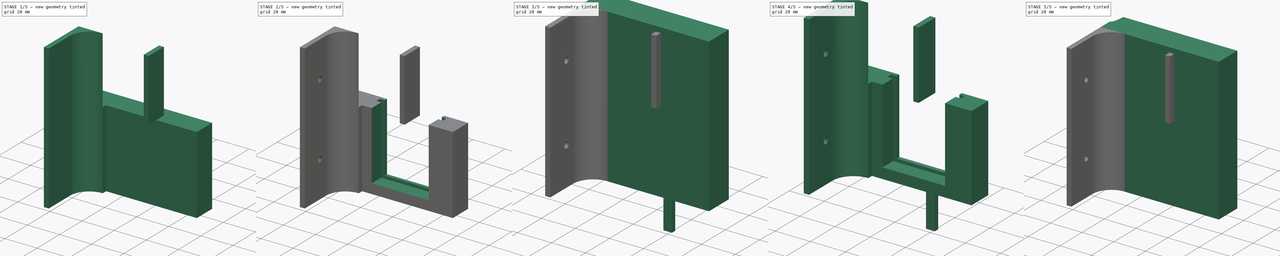
[diagram: build sequence overview — one tinted view per stage of 5, left to right]
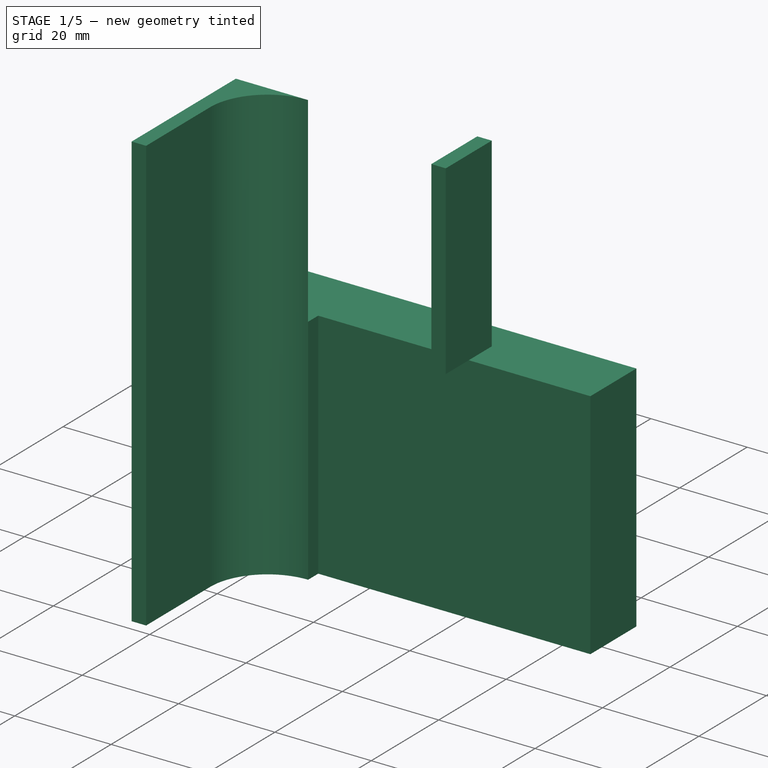
[diagram: stage 1 of 5 — iso view after this stage's code; geometry added in this stage tinted green]
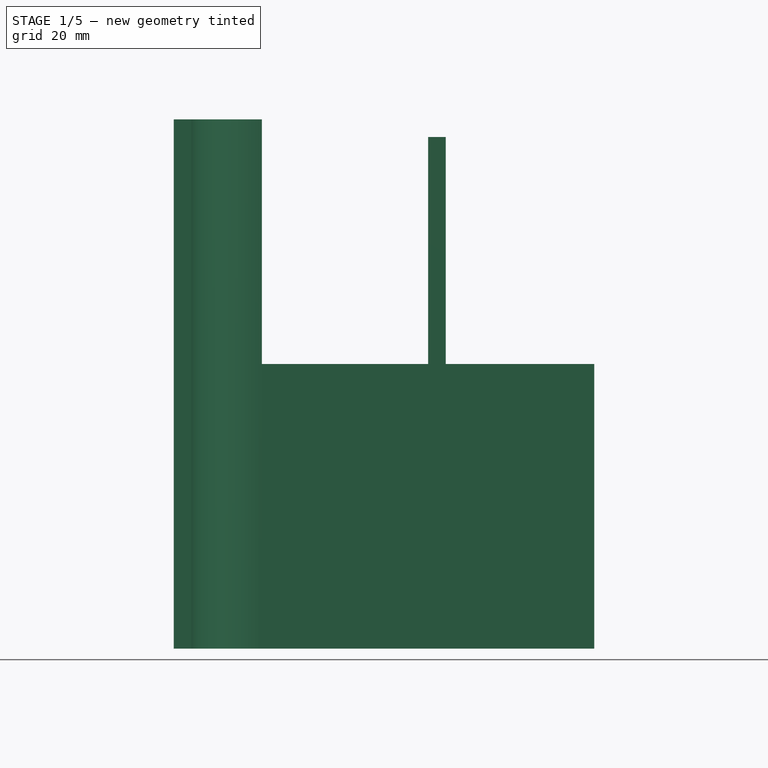
[diagram: stage 1 of 5 — front view after this stage's code; geometry added in this stage tinted green]
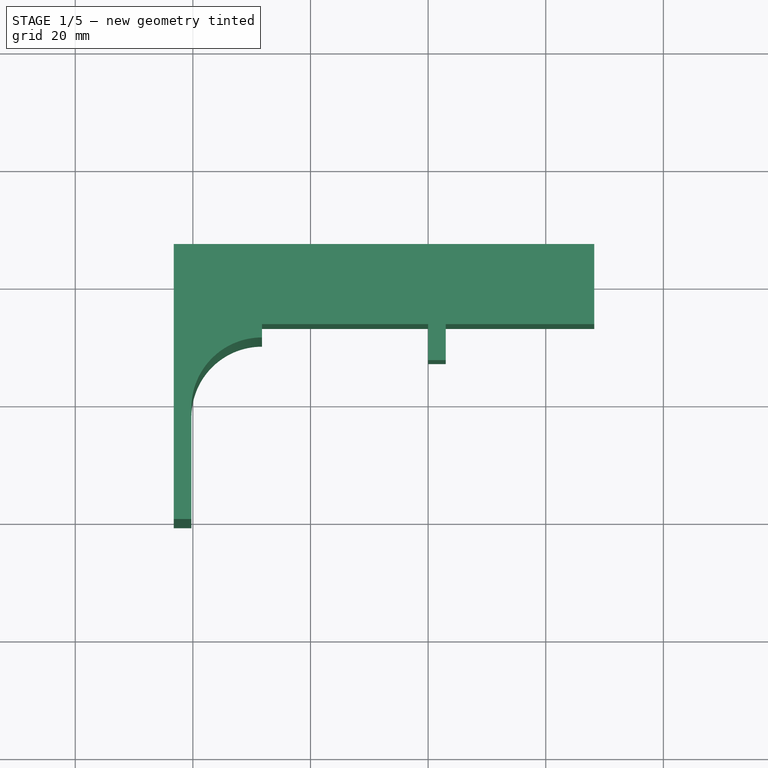
[diagram: stage 1 of 5 — top view after this stage's code; geometry added in this stage tinted green]
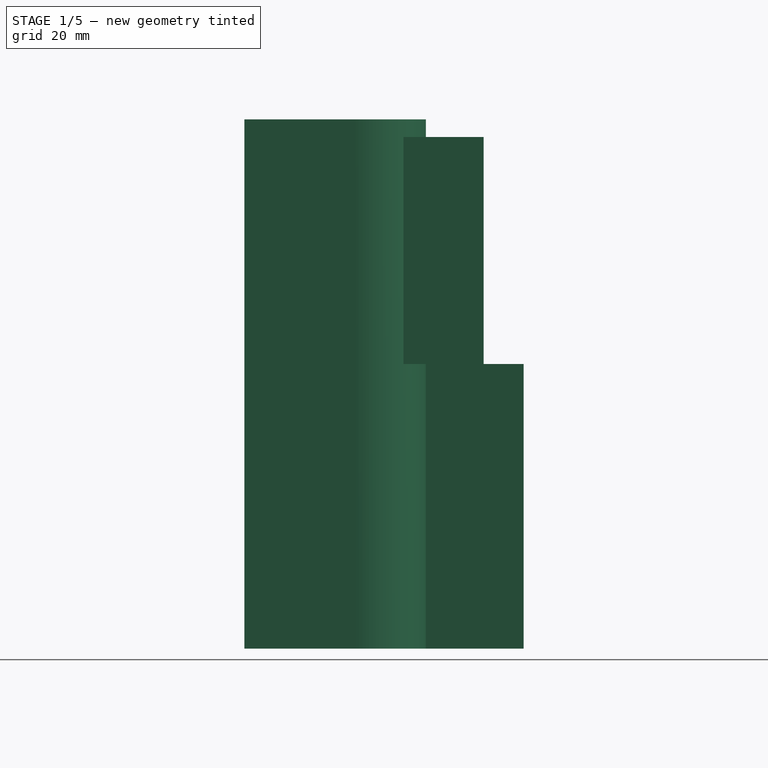
[diagram: stage 1 of 5 — right view after this stage's code; geometry added in this stage tinted green]
FCSTD DOCUMENT  (FreeCAD 0.19R24366 (Git))
Label: rfid_mk2
License: All rights reserved
LicenseURL: http://en.wikipedia.org/wiki/All_rights_reserved
objects: Sketcher::SketchObject×12, PartDesign::Pad×7, PartDesign::Body×7, App::Link×7, PartDesign::Pocket×5, Part::Cut×5, Spreadsheet::Sheet×3, PartDesign::Boolean×1, PartDesign::Thickness×1, Part::MultiFuse×1
note: 52 computed .brp shape members not serialized (recipe doc carries the construction recipe); baked Part::Feature solids carry a one-line shape summary decoded from their .brp

FEATURE [Sketcher::SketchObject] Sketch  label="Holder Sketch"
  FullyConstrained = false
  MapMode = 5
  Support = -> [XY_Plane]
  expr: Constraints[8] = <<Holder Data>>.width
  expr: Constraints[9] = <<Holder Data>>.thick
  sketch-geometry (4):
    g0: LineSegment StartX=-28.25 StartY=6.81 StartZ=0 EndX=28.25 EndY=6.81 EndZ=0
    g1: LineSegment StartX=28.25 StartY=6.81 StartZ=0 EndX=28.25 EndY=-6.81 EndZ=0
    g2: LineSegment StartX=28.25 StartY=-6.81 StartZ=0 EndX=-28.25 EndY=-6.81 EndZ=0
    g3: LineSegment StartX=-28.25 StartY=-6.81 StartZ=0 EndX=-28.25 EndY=6.81 EndZ=0
  constraints (10):
    c: Coincident(g0,g1)
    c: Coincident(g1,g2)
    c: Coincident(g2,g3)
    c: Coincident(g3,g0)
    c: Horizontal(g2)
    c: Vertical(g3)
    c: Symmetric(g0,g0,g-2)
    c: Symmetric(g1,g0,g-1)
    c: DistanceX(g0,g0) = 56.5
    c: DistanceY(g1,g0) = 13.62
FEATURE [PartDesign::Pad] Pad  label="Holder Pad"
  AllowMultiFace = false
  Direction = (1,1,1)
  Length = 48.4
  Length2 = 100
  Profile = -> Sketch
  Type = 0
  expr: Length = <<Holder Data>>.height
FEATURE [PartDesign::Body] Body  label="Holder"
  Group = -> [Sketch,Pad,Sketch001,Pocket,Sketch002,Pocket001]
  Origin = -> Origin
  Tip = -> Pocket001
FEATURE [Spreadsheet::Sheet] Spreadsheet002  label="Bracket Data"
  cells = A1=width; B1(width)=15; A2=depth; B2(depth)=47.5; A3=rivit; B3(rivit)=3.5
FEATURE [Sketcher::SketchObject] Sketch003  label="Bracket Sketch"
  FullyConstrained = false
  MapMode = 5
  Support = -> [XY_Plane001]
  expr: Constraints[13] = <<Bracket Data>>.depth
  expr: Constraints[14] = <<General Data>>.wall
  expr: Constraints[15] = <<Bracket Data>>.width
  expr: Constraints[16] = <<Holder Data>>.thick + <<General Data>>.wall
  expr: Constraints[18] = <<Holder Data>>.thick / 2
  expr: Constraints[19] = <<Holder Data>>.width / 2
  expr: Constraints[17] = <<Bracket Data>>.width - <<General Data>>.wall - 0.01
  sketch-geometry (7):
    g0: LineSegment StartX=-43.25 StartY=6.81 StartZ=0 EndX=-43.25 EndY=-40.69 EndZ=0
    g1: LineSegment StartX=-43.25 StartY=-40.69 StartZ=0 EndX=-40.25 EndY=-40.69 EndZ=0
    g2: LineSegment StartX=-40.25 StartY=-40.69 StartZ=0 EndX=-40.25 EndY=-21.8 EndZ=0
    g3: LineSegment StartX=-28.26 StartY=-9.81 StartZ=0 EndX=-28.25 EndY=-9.81 EndZ=0
    g4: LineSegment StartX=-28.25 StartY=-9.81 StartZ=0 EndX=-28.25 EndY=6.81 EndZ=0
    g5: LineSegment StartX=-28.25 StartY=6.81 StartZ=0 EndX=-43.25 EndY=6.81 EndZ=0
    g6: ArcOfCircle CenterX=-28.26 CenterY=-21.8 CenterZ=0 NormalX=0 NormalY=0 NormalZ=1 AngleXU=0 Radius=11.99 StartAngle=1.5708 EndAngle=3.14159
  constraints (20):
    c: Vertical(g0)
    c: Coincident(g0,g1)
    c: Coincident(g1,g2)
    c: Vertical(g2)
    c: Horizontal(g3)
    c: Coincident(g3,g4)
    c: Vertical(g4)
    c: Coincident(g4,g5)
    c: Coincident(g5,g0)
    c: Horizontal(g5)
    c: Horizontal(g1)
    c: Tangent(g2,g6) = 1.5708
    c: Tangent(g3,g6) = 1.5708
    c: DistanceY(g0,g0) = 47.5
    c: DistanceX(g1,g1) = 3
    c: DistanceX(g5,g5) = 15
    c: DistanceY(g4,g4) = 16.62
    c: Radius(g6) = 11.99
    c: DistanceY(g-1,g4) = 6.81
    c: DistanceX(g4,g-1) = 28.25
FEATURE [PartDesign::Pad] Pad001  label="Bracket Pad"
  AllowMultiFace = false
  Direction = (1,1,1)
  Length = 90
  Length2 = 100
  Profile = -> Sketch003
  Type = 0
  expr: Length = <<General Data>>.height
FEATURE [Sketcher::SketchObject] Sketch004  label="Bracket Block Cutout Sketch"
  FullyConstrained = false
  MapMode = 5
  Placement = pos=(0,0,90) rot=(0,0,1;0rad)
  Support = -> [Pad001]
  expr: Constraints[8] = <<Holder Data>>.thick + <<General Data>>.wall
  expr: Constraints[9] = <<Bracket Data>>.width
  expr: Constraints[10] = <<Holder Data>>.thick / 2
  expr: Constraints[11] = <<Holder Data>>.width / 2
  sketch-geometry (4):
    g0: LineSegment StartX=-43.25 StartY=6.81 StartZ=0 EndX=-28.25 EndY=6.81 EndZ=0
    g1: LineSegment StartX=-28.25 StartY=6.81 StartZ=0 EndX=-28.25 EndY=-9.81 EndZ=0
    g2: LineSegment StartX=-28.25 StartY=-9.81 StartZ=0 EndX=-43.25 EndY=-9.81 EndZ=0
    g3: LineSegment StartX=-43.25 StartY=-9.81 StartZ=0 EndX=-43.25 EndY=6.81 EndZ=0
  constraints (12):
    c: Coincident(g0,g1)
    c: Coincident(g1,g2)
    c: Coincident(g2,g3)
    c: Coincident(g3,g0)
    c: Horizontal(g0)
    c: Horizontal(g2)
    c: Vertical(g1)
    c: Vertical(g3)
    c: DistanceY(g1,g1) = 16.62
    c: DistanceX(g0,g0) = 15
    c: DistanceY(g-1,g0) = 6.81
    c: DistanceX(g0,g-1) = 28.25
FEATURE [PartDesign::Pocket] Pocket002  label="Bracket Block Cutout"
  AllowMultiFace = false
  BaseFeature = -> Pad001
  Length = 41.6
  Length2 = 100
  Profile = -> Sketch004
  Type = 0
  expr: Length = <<General Data>>.height - <<Holder Data>>.height
FEATURE [Sketcher::SketchObject] Sketch013
  FullyConstrained = false
  MapMode = 5
  Placement = pos=(0,0,0) rot=(0.57735,0.57735,0.57735;2.0944rad)
  Support = -> [YZ_Plane007]
  expr: Constraints[8] = <<Holder Data>>.thick
  expr: Constraints[9] = <<General Data>>.height - <<General Data>>.wall - <<Holder Data>>.height
  expr: Constraints[10] = <<General Data>>.height - <<General Data>>.wall
  expr: Constraints[11] = <<Holder Data>>.thick
  sketch-geometry (4):
    g0: LineSegment StartX=-13.62 StartY=87 StartZ=0 EndX=0 EndY=87 EndZ=0
    g1: LineSegment StartX=0 StartY=87 StartZ=0 EndX=0 EndY=48.4 EndZ=0
    g2: LineSegment StartX=0 StartY=48.4 StartZ=0 EndX=-13.62 EndY=48.4 EndZ=0
    g3: LineSegment StartX=-13.62 StartY=48.4 StartZ=0 EndX=-13.62 EndY=87 EndZ=0
  constraints (12):
    c: Coincident(g0,g1)
    c: Coincident(g1,g2)
    c: Coincident(g2,g3)
    c: Coincident(g3,g0)
    c: Horizontal(g0)
    c: Horizontal(g2)
    c: Vertical(g1)
    c: Vertical(g3)
    c: DistanceX(g0,g0) = 13.62
    c: DistanceY(g1,g1) = 38.6
    c: DistanceY(g-1,g0) = 87
    c: DistanceX(g2,g-1) = 13.62
FEATURE [PartDesign::Pad] Pad008
  AllowMultiFace = false
  Direction = (1,1,1)
  Length = 3
  Length2 = 100
  Placement = pos=(0,0,0) rot=(0.57735,0.57735,0.57735;2.0944rad)
  Profile = -> Sketch013
  Type = 0
  expr: Length = <<General Data>>.wall
FEATURE [PartDesign::Body] Body007  label="Cover Upper Wall"
  Group = -> [Sketch013,Pad008]
  Origin = -> Origin007
  Placement = pos=(20,28.25,0) rot=(0,0,1;0rad)
  Tip = -> Pad008
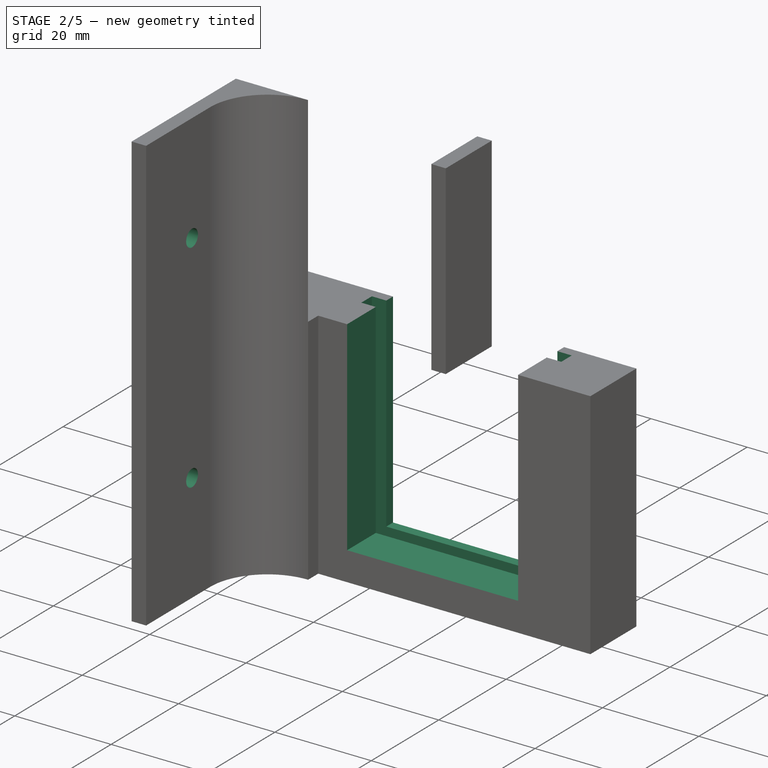
[diagram: stage 2 of 5 — iso view after this stage's code; geometry added in this stage tinted green]
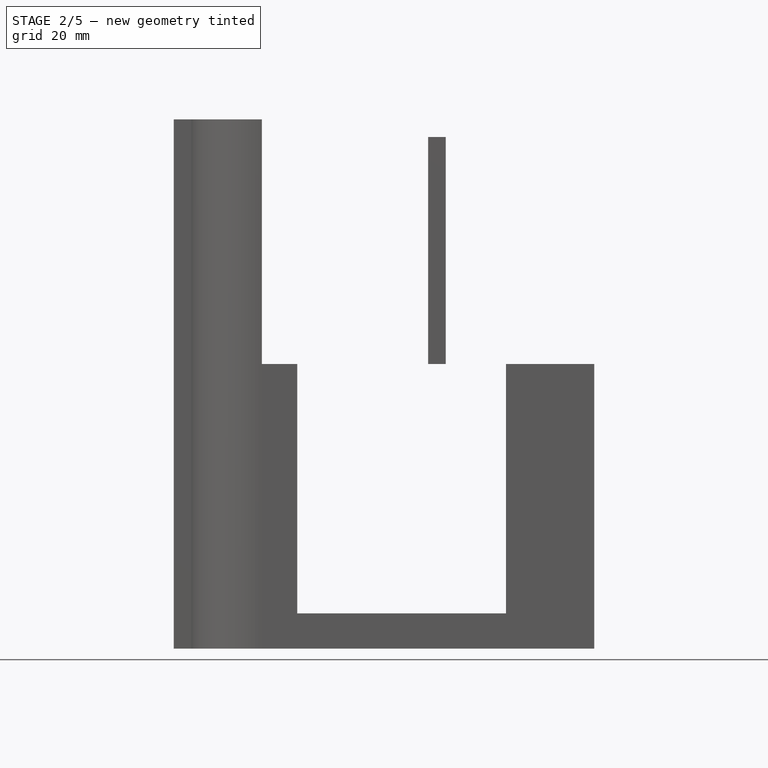
[diagram: stage 2 of 5 — front view after this stage's code; geometry added in this stage tinted green]
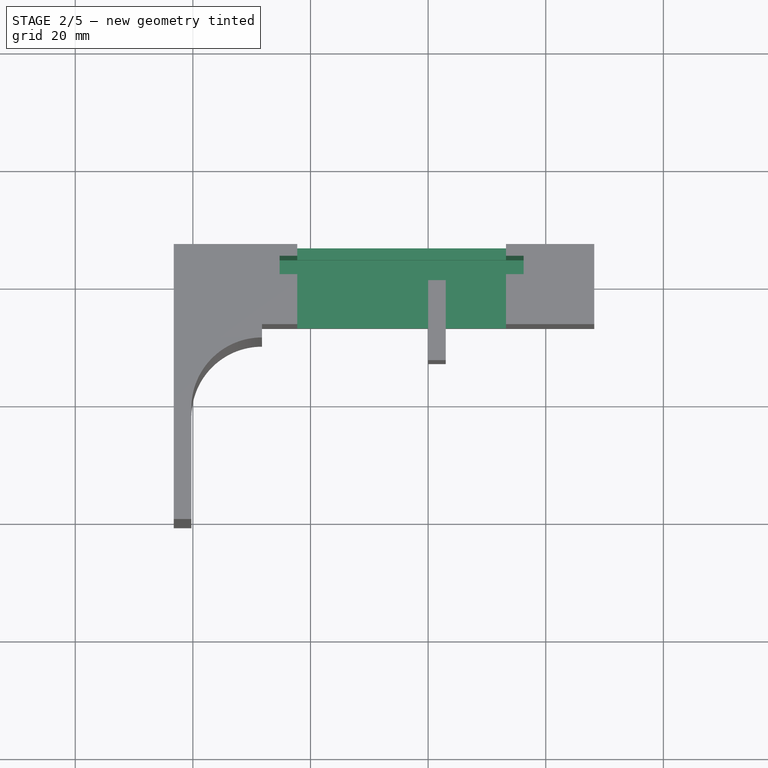
[diagram: stage 2 of 5 — top view after this stage's code; geometry added in this stage tinted green]
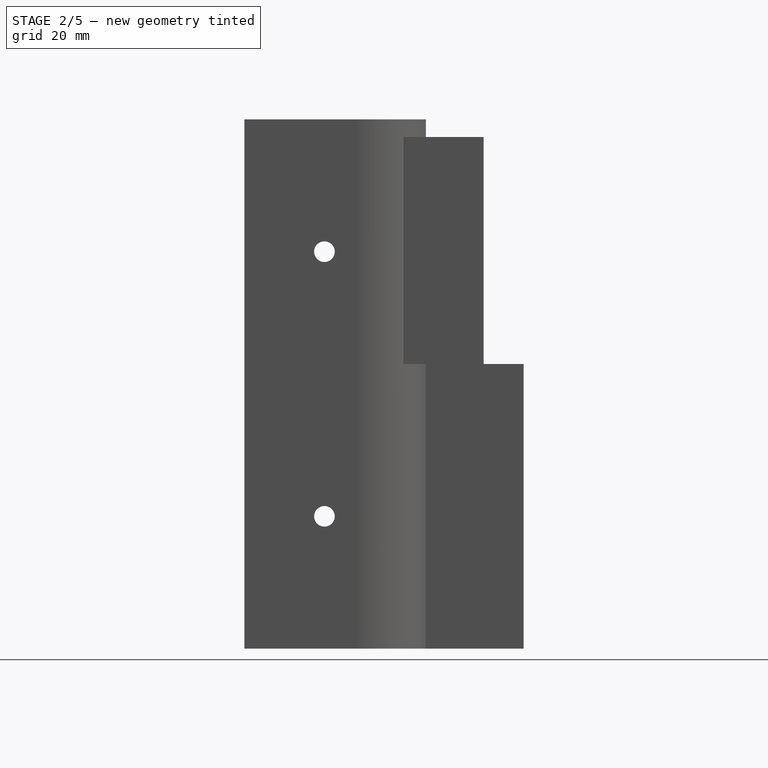
[diagram: stage 2 of 5 — right view after this stage's code; geometry added in this stage tinted green]
FEATURE [Sketcher::SketchObject] Sketch001  label="RFID Slot"
  FullyConstrained = false
  MapMode = 5
  Placement = pos=(0,0,48.4) rot=(0,0,1;0rad)
  Support = -> [Pad]
  expr: Constraints[11] = <<Holder Data>>.thick / 2 - <<Holder Data>>.glass_clearance
  expr: Constraints[2] = <<Holder Data>>.rfid_gap
  expr: Constraints[10] = -<<Holder Data>>.width / 2 + <<General Data>>.wall
  expr: Constraints[1] = <<Holder Data>>.slot
  sketch-geometry (4):
    g0: LineSegment StartX=-25.25 StartY=4.81 StartZ=0 EndX=16.25 EndY=4.81 EndZ=0
    g1: LineSegment StartX=16.25 StartY=4.81 StartZ=0 EndX=16.25 EndY=1.69 EndZ=0
    g2: LineSegment StartX=16.25 StartY=1.69 StartZ=0 EndX=-25.25 EndY=1.69 EndZ=0
    g3: LineSegment StartX=-25.25 StartY=1.69 StartZ=0 EndX=-25.25 EndY=4.81 EndZ=0
  constraints (12):
    c: Vertical(g1)
    c: DistanceY(g1,g1) = 3.12
    c: DistanceX(g0,g0) = 41.5
    c: Coincident(g3,g0)
    c: Coincident(g1,g0)
    c: Coincident(g2,g1)
    c: Horizontal(g0)
    c: Horizontal(g2)
    c: Vertical(g3)
    c: Coincident(g2,g3)
    c: DistanceX(g-1,g2) = -25.25
    c: DistanceY(g-1,g0) = 4.81
FEATURE [Spreadsheet::Sheet] Spreadsheet  label="Holder Data"
  cells = A1=height; B1(height)==G2 - G3 - B6 + <<General Data>>.wall; A2=width; B2(width)==B8 + <<General Data>>.wall * 5; F2=rfid_length; G2=60; A3=glass_clearance; B3(glass_clearance)=2; F3=rfid_cap_offset; G3==9.9 + 2.7; A4=thick; B4(thick)==B3 + B5 + B7; F4=rfid_width; G4=39.5; A5=slot; B5(slot)==G5 + B6; F5=rfid_depth; G5=1.12; A6=clearance; B6(clearance)==<<General Data>>.clearance; A7=rfid_clearance; B7(rfid_clearance)==3.5 + 5; A8=rfid_gap; B8(rfid_gap)==G4 + B6
FEATURE [Spreadsheet::Sheet] Spreadsheet001  label="General Data"
  cells = A1=wall; B1(wall)=3; A2=clearance; B2(clearance)=2; A3=height; B3(height)==60 + 30; A4=corner_a; B4(corner_a)=8.5; A5=corner_b; B5(corner_b)=2.4; A6=rail_height; B6(rail_height)=20; A7=rail_size; B7(rail_size)==B1; A8=rail_thick; B8(rail_thick)==B7 / 2
FEATURE [PartDesign::Pocket] Pocket  label="RFID Slot Pocket"
  AllowMultiFace = false
  BaseFeature = -> Pad
  Length = 45.4
  Length2 = 100
  Profile = -> Sketch001
  Type = 0
  expr: Length = <<Holder Data>>.height - <<General Data>>.wall
FEATURE [Sketcher::SketchObject] Sketch002  label="Through Holder"
  FullyConstrained = false
  MapMode = 5
  Placement = pos=(0,-6.81,0) rot=(1,0,0;1.5708rad)
  Support = -> [Pocket]
  expr: Constraints[7] = <<General Data>>.wall * 2
  expr: Constraints[8] = <<Holder Data>>.height
  expr: Constraints[9] = <<Holder Data>>.width / 2 - <<General Data>>.wall * 2
  expr: Constraints[10] = <<Holder Data>>.rfid_gap - <<General Data>>.wall * 2
  sketch-geometry (4):
    g0: LineSegment StartX=-22.25 StartY=48.4 StartZ=0 EndX=13.25 EndY=48.4 EndZ=0
    g1: LineSegment StartX=13.25 StartY=48.4 StartZ=0 EndX=13.25 EndY=6 EndZ=0
    g2: LineSegment StartX=13.25 StartY=6 StartZ=0 EndX=-22.25 EndY=6 EndZ=0
    g3: LineSegment StartX=-22.25 StartY=6 StartZ=0 EndX=-22.25 EndY=48.4 EndZ=0
  constraints (11):
    c: Coincident(g0,g1)
    c: Coincident(g1,g2)
    c: Coincident(g2,g3)
    c: Coincident(g3,g0)
    c: Horizontal(g0)
    c: Vertical(g1)
    c: Vertical(g3)
    c: DistanceY(g-1,g2) = 6
    c: DistanceY(g-1,g0) = 48.4
    c: DistanceX(g2,g-1) = 22.25
    c: DistanceX(g2,g2) = 35.5
FEATURE [PartDesign::Pocket] Pocket001  label="Through Holder Pocket"
  AllowMultiFace = false
  BaseFeature = -> Pocket
  Length = 56.5
  Length2 = 100
  Profile = -> Sketch002
  Type = 0
  expr: Length = <<Holder Data>>.width
FEATURE [PartDesign::Boolean] Boolean  label="Union with Holder"
  BaseFeature = -> Pocket002
  Group = -> [Body]
  Type = 0
FEATURE [PartDesign::Body] Body006  label="Rail Cutout Original"
  Group = -> [Sketch011,Pad007]
  Origin = -> Origin006
  Tip = -> Pad007
FEATURE [App::Link] Link005  label="Rail Cutout Left"
  LinkPlacement = pos=(-31.25,-7.185,48.4) rot=(0,0,1;0rad)
  LinkedObject = -> Body006
  Placement = pos=(-31.25,-7.185,48.4) rot=(0,0,1;0rad)
  expr: .Placement.Base.z = <<Rail Left>>.Placement.Base.z
  expr: .Placement.Base.y = <<Rail Left>>.Placement.Base.y
  expr: .Placement.Base.x = <<Rail Left>>.Placement.Base.x
FEATURE [App::Link] Link006  label="Rail Cutout Right"
  LinkPlacement = pos=(25.25,0,48.4) rot=(0,0,1;0rad)
  LinkedObject = -> Link005
  Placement = pos=(25.25,0,48.4) rot=(0,0,1;0rad)
  expr: .Placement.Base.z = <<Rail Right>>.Placement.Base.z
  expr: .Placement.Base.y = <<Rail Right>>.Placement.Base.y
  expr: .Placement.Base.x = <<Rail Right>>.Placement.Base.x
FEATURE [Sketcher::SketchObject] Sketch012  label="Rivit Holes"
  FullyConstrained = false
  MapMode = 5
  Placement = pos=(-43.25,0,0) rot=(0.57735,-0.57735,-0.57735;2.0944rad)
  Support = -> [Boolean]
  expr: Constraints[5] = -<<Holder Data>>.thick / 2 + <<Bracket Data>>.depth - <<Holder Data>>.thick
  expr: Constraints[3] = <<General Data>>.height * 3 / 4
  expr: Constraints[2] = <<General Data>>.height * 1 / 4
  expr: Constraints[0] = <<Bracket Data>>.rivit / 2
  sketch-geometry (2):
    g0: Circle CenterX=27.07 CenterY=67.5 CenterZ=0 NormalX=0 NormalY=0 NormalZ=1 AngleXU=0 Radius=1.75
    g1: Circle CenterX=27.07 CenterY=22.5 CenterZ=0 NormalX=0 NormalY=0 NormalZ=1 AngleXU=0 Radius=1.75
  constraints (6):
    c: Radius(g0) = 1.75
    c: Equal(g0,g1)
    c: DistanceY(g-1,g1) = 22.5
    c: DistanceY(g-1,g0) = 67.5
    c: Vertical(g1,g0)
    c: DistanceX(g-1,g1) = 27.07
FEATURE [PartDesign::Pocket] Pocket004
  AllowMultiFace = false
  BaseFeature = -> Boolean
  Length = 3
  Length2 = 100
  Profile = -> Sketch012
  Type = 0
  expr: Length = <<General Data>>.wall
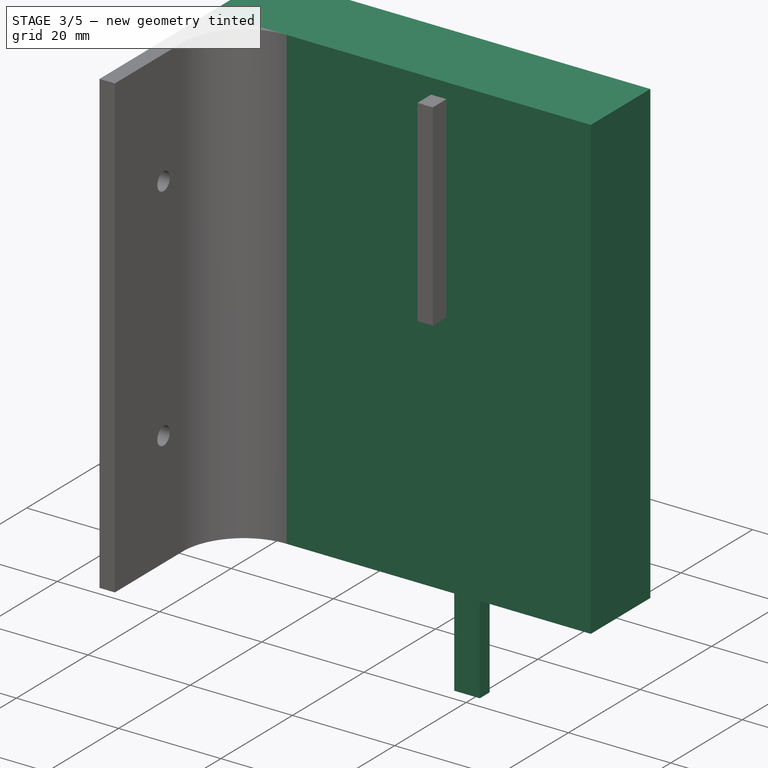
[diagram: stage 3 of 5 — iso view after this stage's code; geometry added in this stage tinted green]
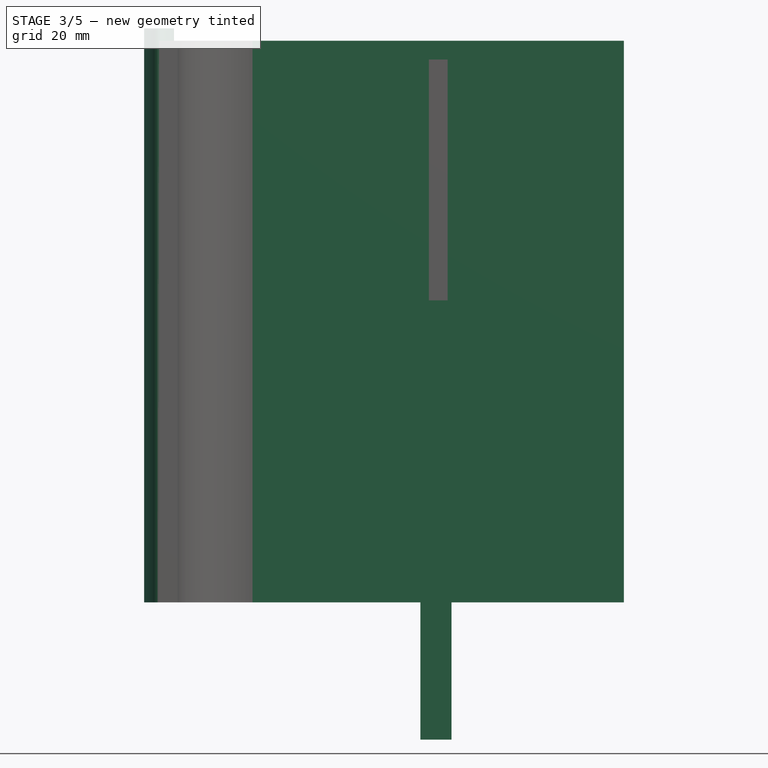
[diagram: stage 3 of 5 — front view after this stage's code; geometry added in this stage tinted green]
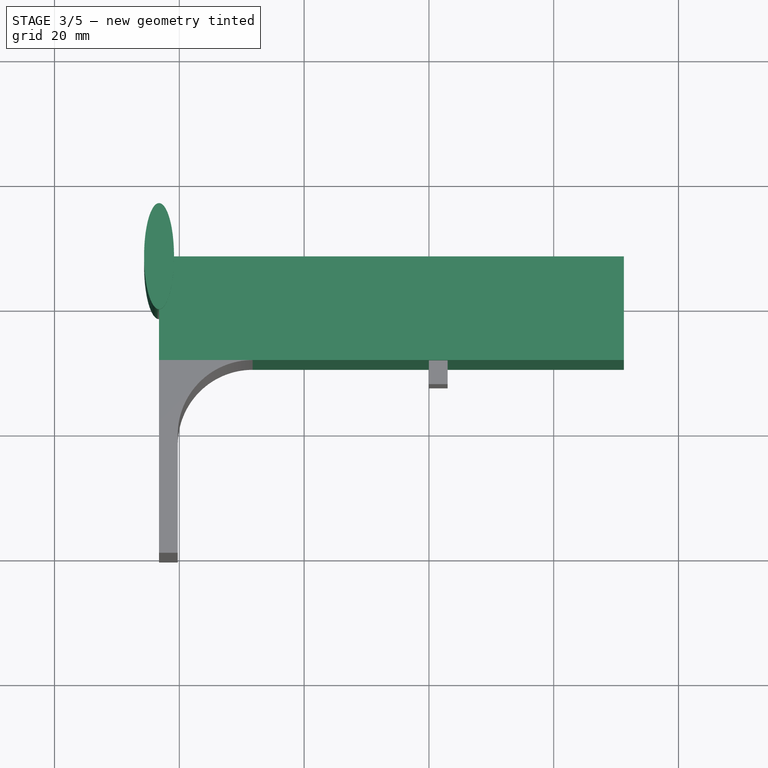
[diagram: stage 3 of 5 — top view after this stage's code; geometry added in this stage tinted green]
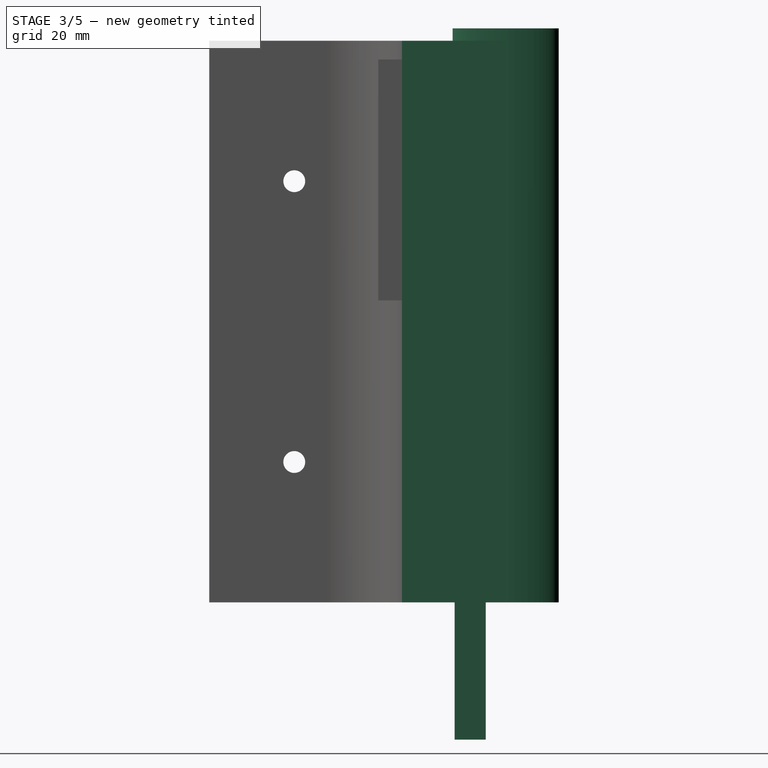
[diagram: stage 3 of 5 — right view after this stage's code; geometry added in this stage tinted green]
FEATURE [Sketcher::SketchObject] Sketch005  label="Cover Box Sketch"
  FullyConstrained = false
  MapMode = 5
  Support = -> [XY_Plane002]
  expr: Constraints[8] = <<Holder Data>>.width / 2 + <<General Data>>.wall
  expr: Constraints[9] = <<Holder Data>>.width + <<Bracket Data>>.width + <<General Data>>.wall
  expr: Constraints[10] = <<Holder Data>>.thick / 2
  expr: Constraints[11] = <<Holder Data>>.thick + <<General Data>>.wall
  sketch-geometry (4):
    g0: LineSegment StartX=-43.25 StartY=6.81 StartZ=0 EndX=31.25 EndY=6.81 EndZ=0
    g1: LineSegment StartX=31.25 StartY=6.81 StartZ=0 EndX=31.25 EndY=-9.81 EndZ=0
    g2: LineSegment StartX=31.25 StartY=-9.81 StartZ=0 EndX=-43.25 EndY=-9.81 EndZ=0
    g3: LineSegment StartX=-43.25 StartY=-9.81 StartZ=0 EndX=-43.25 EndY=6.81 EndZ=0
  constraints (12):
    c: Coincident(g0,g1)
    c: Coincident(g1,g2)
    c: Coincident(g2,g3)
    c: Coincident(g3,g0)
    c: Horizontal(g0)
    c: Horizontal(g2)
    c: Vertical(g1)
    c: Vertical(g3)
    c: DistanceX(g-1,g0) = 31.25
    c: DistanceX(g0,g0) = 74.5
    c: DistanceY(g-1,g0) = 6.81
    c: DistanceY(g1,g1) = 16.62
FEATURE [PartDesign::Pad] Pad002  label="Cover Box"
  AllowMultiFace = false
  Direction = (1,1,1)
  Length = 90
  Length2 = 100
  Profile = -> Sketch005
  Type = 0
  expr: Length = <<General Data>>.height
FEATURE [PartDesign::Body] Body002  label="Cover Base"
  Group = -> [Sketch005,Pad002,Thickness,Sketch006,Pocket003]
  Origin = -> Origin002
  Tip = -> Pocket003
FEATURE [Sketcher::SketchObject] Sketch007  label="Corner Sketch"
  FullyConstrained = false
  MapMode = 5
  Support = -> [XY_Plane003]
  expr: Constraints[5] = <<Holder Data>>.thick / 2
  expr: Constraints[6] = <<Holder Data>>.width / 2 + <<Bracket Data>>.width
  expr: Constraints[7] = <<General Data>>.corner_a * 2
  expr: Constraints[8] = <<General Data>>.corner_b * 2
  sketch-geometry (5):
    g0: Ellipse CenterX=-43.25 CenterY=6.81 CenterZ=0 NormalX=0 NormalY=0 NormalZ=1 MajorRadius=8.5 MinorRadius=2.4 AngleXU=1.5708
    g1: LineSegment StartX=-43.25 StartY=15.31 StartZ=0 EndX=-43.25 EndY=-1.69 EndZ=0
    g2: LineSegment StartX=-45.65 StartY=6.81 StartZ=0 EndX=-40.85 EndY=6.81 EndZ=0
    g3: GeomPoint X=-43.25 Y=14.9641 Z=0
    g4: GeomPoint X=-43.25 Y=-1.34414 Z=0
  constraints (6):
    c: InternalAlignment(g1-g4 -> g0) x4
    c: Horizontal(g2)
    c: DistanceY(g-1,g0) = 6.81
    c: DistanceX(g0,g-1) = 43.25
    c: DistanceY(g1,g1) = 17
    c: DistanceX(g2,g2) = 4.8
FEATURE [PartDesign::Pad] Pad003
  AllowMultiFace = false
  Direction = (1,1,1)
  Length = 92
  Length2 = 100
  Profile = -> Sketch007
  Type = 0
  expr: Length = <<General Data>>.height + 2
FEATURE [Sketcher::SketchObject] Sketch010  label="Rail Sketch"
  FullyConstrained = false
  MapMode = 5
  Support = -> [XY_Plane005]
  expr: Constraints[12] = <<General Data>>.rail_thick
  expr: Constraints[13] = <<General Data>>.rail_thick
  expr: Constraints[14] = <<General Data>>.rail_size
  expr: Constraints[15] = <<General Data>>.rail_size
  sketch-geometry (6):
    g0: LineSegment StartX=3 StartY=-0.75 StartZ=0 EndX=-0.75 EndY=-0.75 EndZ=0
    g1: LineSegment StartX=-0.75 StartY=-0.75 StartZ=0 EndX=-0.75 EndY=3 EndZ=0
    g2: LineSegment StartX=-0.75 StartY=3 StartZ=0 EndX=0.75 EndY=3 EndZ=0
    g3: LineSegment StartX=0.75 StartY=3 StartZ=0 EndX=0.75 EndY=0.75 EndZ=0
    g4: LineSegment StartX=0.75 StartY=0.75 StartZ=0 EndX=3 EndY=0.75 EndZ=0
    g5: LineSegment StartX=3 StartY=0.75 StartZ=0 EndX=3 EndY=-0.75 EndZ=0
  constraints (16):
    c: Horizontal(g0)
    c: Coincident(g0,g1)
    c: Vertical(g1)
    c: Coincident(g1,g2)
    c: Coincident(g2,g3)
    c: Vertical(g3)
    c: Coincident(g3,g4)
    c: Horizontal(g4)
    c: Coincident(g4,g5)
    c: Coincident(g5,g0)
    c: Symmetric(g1,g2,g-2)
    c: Symmetric(g0,g4,g-1)
    c: DistanceX(g2,g2) = 1.5
    c: DistanceY(g5,g5) = 1.5
    c: DistanceX(g-1,g0) = 3
    c: DistanceY(g-1,g1) = 3
FEATURE [PartDesign::Pad] Pad006  label="Rail Pad"
  AllowMultiFace = false
  Direction = (1,1,1)
  Length = 20
  Length2 = 100
  Profile = -> Sketch010
  Reversed = true
  Type = 0
  expr: Length = <<General Data>>.rail_height
FEATURE [Sketcher::SketchObject] Sketch011  label="Rail Cutout Sketch"
  FullyConstrained = false
  MapMode = 5
  Support = -> [XY_Plane006]
  expr: Constraints[15] = <<General Data>>.rail_size + <<General Data>>.clearance
  expr: Constraints[14] = <<General Data>>.rail_size + <<General Data>>.clearance
  expr: Constraints[13] = <<General Data>>.rail_size / 4 + <<General Data>>.clearance
  expr: Constraints[10] = <<General Data>>.rail_size / 4 + <<General Data>>.clearance
  sketch-geometry (6):
    g0: LineSegment StartX=1.375 StartY=1.375 StartZ=0 EndX=3.625 EndY=1.375 EndZ=0
    g1: LineSegment StartX=3.625 StartY=1.375 StartZ=0 EndX=3.625 EndY=-1.375 EndZ=0
    g2: LineSegment StartX=3.625 StartY=-1.375 StartZ=0 EndX=-1.375 EndY=-1.375 EndZ=0
    g3: LineSegment StartX=-1.375 StartY=-1.375 StartZ=0 EndX=-1.375 EndY=3.625 EndZ=0
    g4: LineSegment StartX=-1.375 StartY=3.625 StartZ=0 EndX=1.375 EndY=3.625 EndZ=0
    g5: LineSegment StartX=1.375 StartY=3.625 StartZ=0 EndX=1.375 EndY=1.375 EndZ=0
  constraints (16):
    c: Horizontal(g0)
    c: Coincident(g0,g1)
    c: Coincident(g1,g2)
    c: Horizontal(g2)
    c: Coincident(g2,g3)
    c: Vertical(g3)
    c: Coincident(g3,g4)
    c: Coincident(g4,g5)
    c: Coincident(g5,g0)
    c: Vertical(g5)
    c: DistanceX(g4,g4) = 2.75
    c: Symmetric(g0,g1,g-1)
    c: Symmetric(g3,g4,g-2)
    c: DistanceY(g1,g1) = 2.75
    c: DistanceY(g3,g3) = 5
    c: DistanceX(g2,g2) = 5
FEATURE [PartDesign::Pad] Pad007  label="Rail Cutout Pad"
  AllowMultiFace = false
  Direction = (1,1,1)
  Length = 22
  Length2 = 100
  Profile = -> Sketch011
  Reversed = true
  Type = 0
  expr: Length = <<General Data>>.rail_height + <<General Data>>.clearance
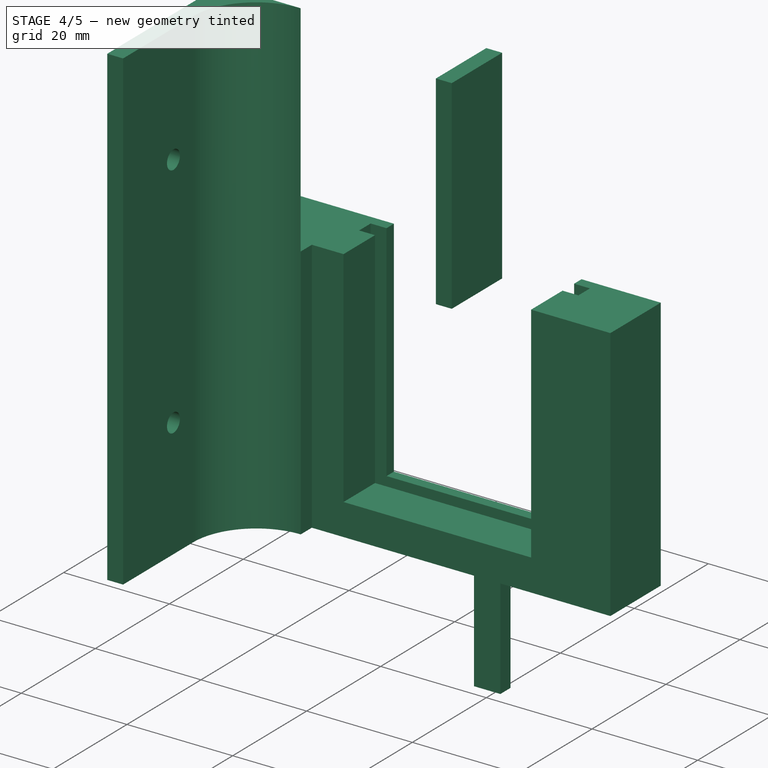
[diagram: stage 4 of 5 — iso view after this stage's code; geometry added in this stage tinted green]
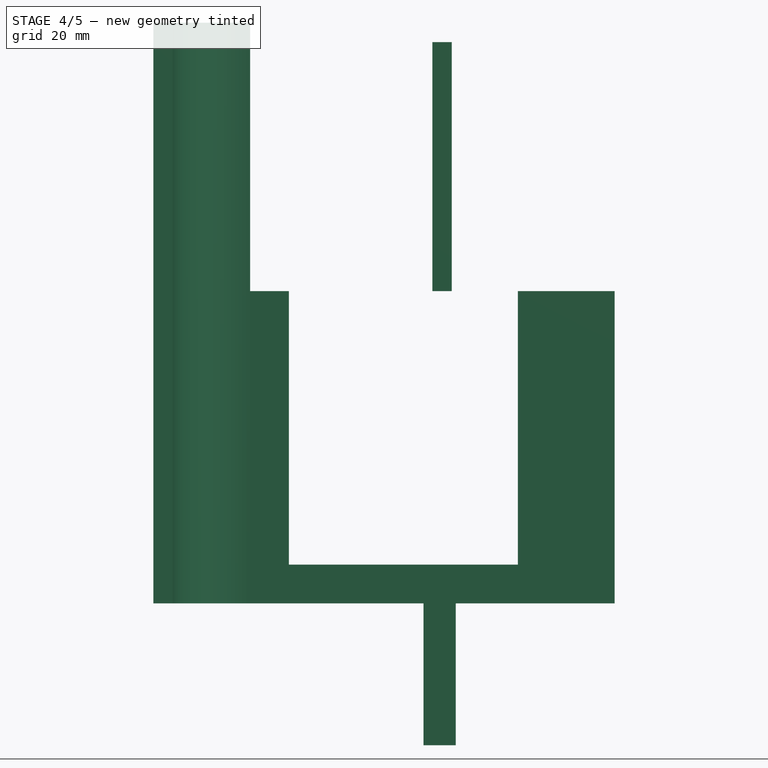
[diagram: stage 4 of 5 — front view after this stage's code; geometry added in this stage tinted green]
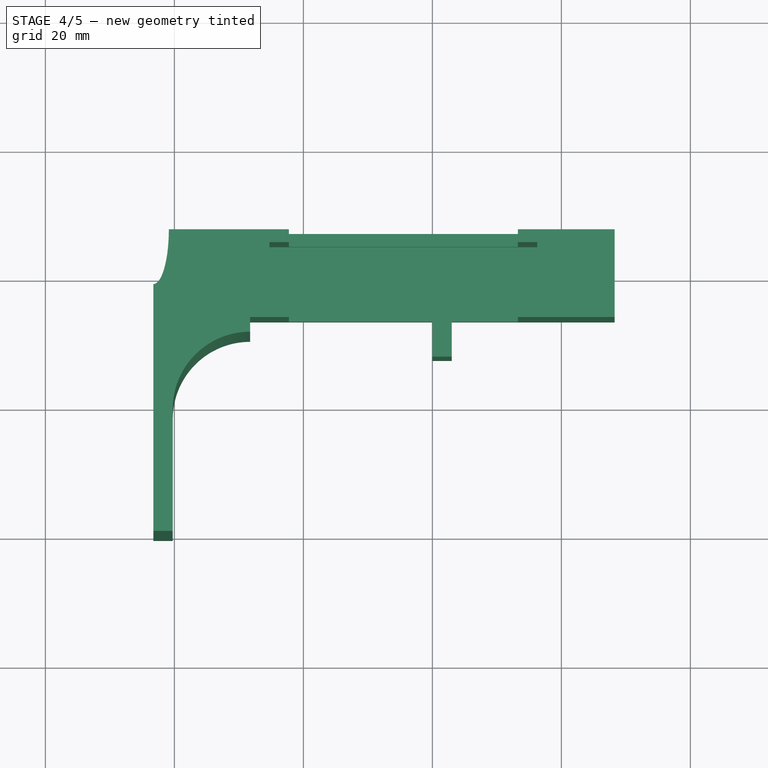
[diagram: stage 4 of 5 — top view after this stage's code; geometry added in this stage tinted green]
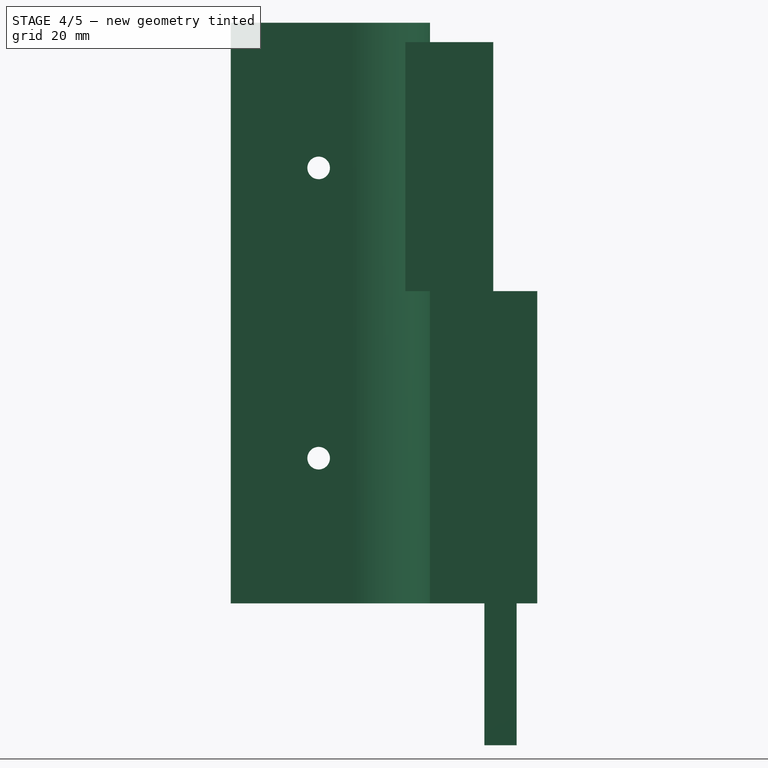
[diagram: stage 4 of 5 — right view after this stage's code; geometry added in this stage tinted green]
FEATURE [PartDesign::Thickness] Thickness
  Base = -> Pad002 [Face1,Face4,Face5]
  BaseFeature = -> Pad002
  Intersection = false
  Join = 0
  Mode = 0
  Refine = true
  Reversed = true
  SupportTransform = false
  Value = 3
  expr: Value = <<General Data>>.wall
FEATURE [Sketcher::SketchObject] Sketch006  label="Cover Bottom Cutout Sketch"
  FullyConstrained = false
  MapMode = 5
  Placement = pos=(0,0,0) rot=(1,0,0;3.14159rad)
  Support = -> [Thickness]
  expr: Constraints[8] = <<Bracket Data>>.width
  expr: Constraints[9] = <<General Data>>.wall
  expr: Constraints[10] = <<Holder Data>>.thick / 2
  expr: Constraints[11] = <<Holder Data>>.width / 2
  sketch-geometry (4):
    g0: LineSegment StartX=-43.25 StartY=9.81 StartZ=0 EndX=-28.25 EndY=9.81 EndZ=0
    g1: LineSegment StartX=-28.25 StartY=9.81 StartZ=0 EndX=-28.25 EndY=6.81 EndZ=0
    g2: LineSegment StartX=-28.25 StartY=6.81 StartZ=0 EndX=-43.25 EndY=6.81 EndZ=0
    g3: LineSegment StartX=-43.25 StartY=6.81 StartZ=0 EndX=-43.25 EndY=9.81 EndZ=0
  constraints (12):
    c: Coincident(g0,g1)
    c: Coincident(g1,g2)
    c: Coincident(g2,g3)
    c: Coincident(g3,g0)
    c: Horizontal(g0)
    c: Horizontal(g2)
    c: Vertical(g1)
    c: Vertical(g3)
    c: DistanceX(g0,g0) = 15
    c: DistanceY(g3,g3) = 3
    c: DistanceY(g-1,g1) = 6.81
    c: DistanceX(g1,g-1) = 28.25
FEATURE [PartDesign::Pocket] Pocket003  label="Cover Bottom Cutout"
  AllowMultiFace = false
  BaseFeature = -> Thickness
  Length = 48.4
  Length2 = 100
  Profile = -> Sketch006
  Type = 0
  expr: Length = <<Holder Data>>.height
FEATURE [PartDesign::Body] Body001  label="Bracket Base"
  Group = -> [Sketch003,Pad001,Sketch004,Pocket002,Boolean,Sketch012,Pocket004]
  Origin = -> Origin001
  Tip = -> Pocket004
FEATURE [Part::Cut] Cut  label="Base cut with cover"
  Base = -> Body001
  Tool = -> Link
FEATURE [Part::Cut] Cut001  label="Base Cut With Corner"
  Base = -> Cut
  Tool = -> Link001
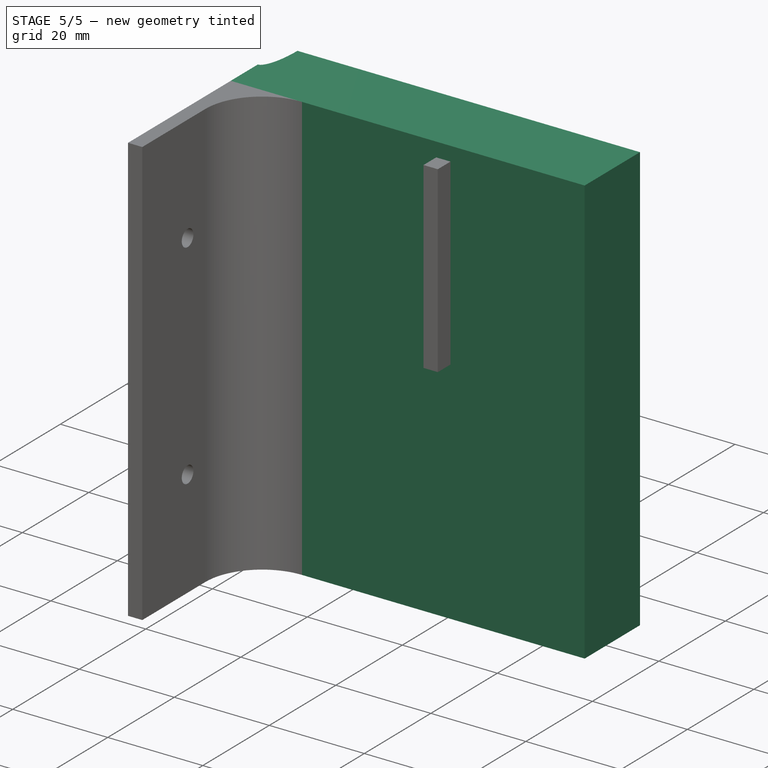
[diagram: stage 5 of 5 — iso view after this stage's code; geometry added in this stage tinted green]
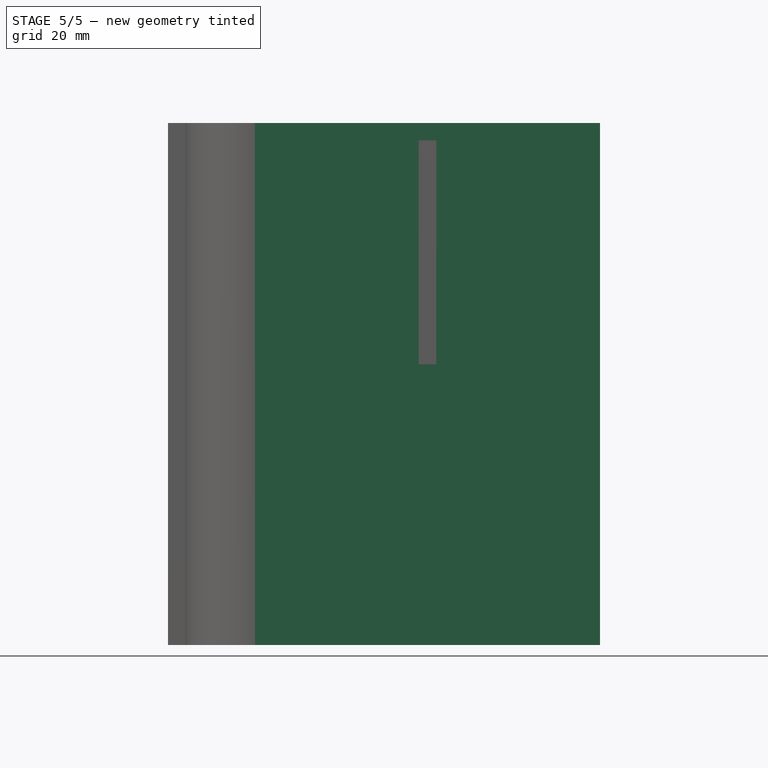
[diagram: stage 5 of 5 — front view after this stage's code; geometry added in this stage tinted green]
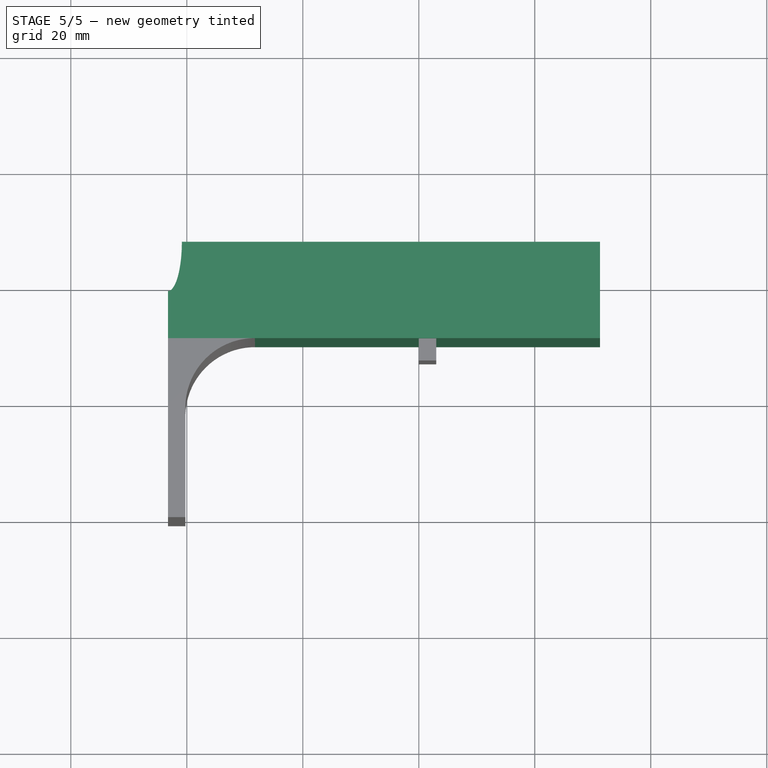
[diagram: stage 5 of 5 — top view after this stage's code; geometry added in this stage tinted green]
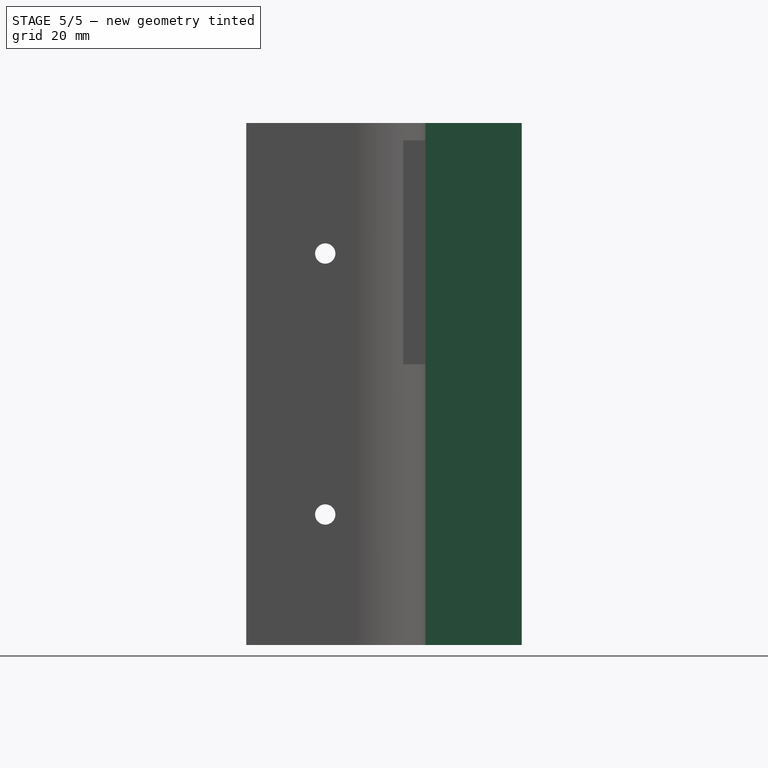
[diagram: stage 5 of 5 — right view after this stage's code; geometry added in this stage tinted green]
FEATURE [PartDesign::Body] Body003  label="Corner Original"
  Group = -> [Sketch007,Pad003]
  Origin = -> Origin003
  Tip = -> Pad003
FEATURE [App::Link] Link  label="Cover Base001"
  LinkedObject = -> Body002
FEATURE [App::Link] Link001  label="Corner Original001"
  LinkedObject = -> Body003
FEATURE [App::Link] Link002  label="Corner Original002"
  LinkedObject = -> Body003
FEATURE [Part::Cut] Cut002  label="Cover Cut with Corner"
  Base = -> Body002
  Tool = -> Link002
FEATURE [PartDesign::Body] Body005  label="Rail Body Original"
  Group = -> [Sketch010,Pad006]
  Origin = -> Origin005
  Tip = -> Pad006
FEATURE [App::Link] Link003  label="Rail Left"
  LinkPlacement = pos=(-31.25,-7.185,48.4) rot=(0,0,1;0rad)
  LinkedObject = -> Body005
  Placement = pos=(-31.25,-7.185,48.4) rot=(0,0,1;0rad)
  expr: .Placement.Base.x = -<<Holder Data>>.width / 2 - <<General Data>>.rail_size
  expr: .Placement.Base.z = <<Holder Data>>.height
  expr: .Placement.Base.y = -<<Holder Data>>.thick / 2 - <<General Data>>.rail_size / 8
FEATURE [App::Link] Link004  label="Rail Right"
  LinkPlacement = pos=(25.25,0,48.4) rot=(0,0,1;0rad)
  LinkedObject = -> Body005
  Placement = pos=(25.25,0,48.4) rot=(0,0,1;0rad)
  expr: .Placement.Base.z = <<Holder Data>>.height
  expr: .Placement.Base.x = <<Holder Data>>.width / 2 - <<General Data>>.rail_size
FEATURE [Part::MultiFuse] Fusion  label="Cover with Rails"
  Shapes = -> [Cut002,Link003,Link004]
FEATURE [Part::Cut] Cut003  label="Base cut with Rail Left"
  Base = -> Cut001
  Tool = -> Link005
FEATURE [Part::Cut] Cut004  label="Base cut with Rails"
  Base = -> Cut003
  Tool = -> Link006
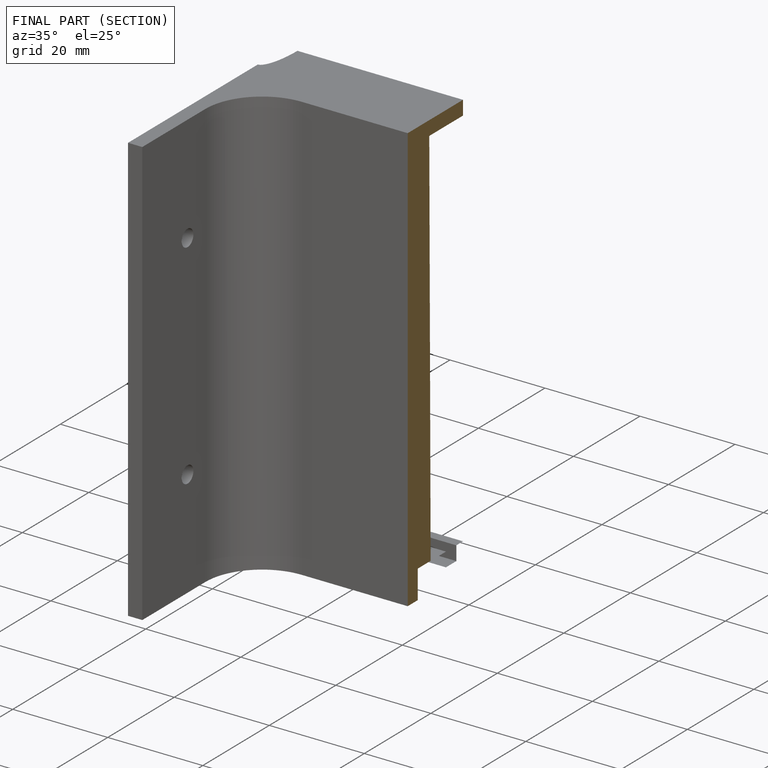
[diagram: finished part — half-section view (interior)]
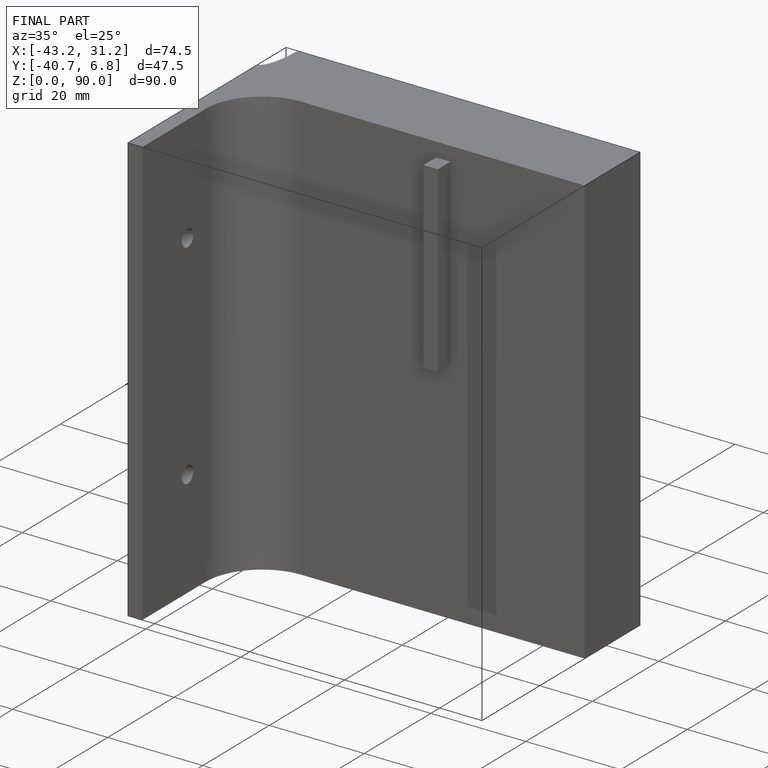
[diagram: finished part — iso view with bounding-box wireframe]
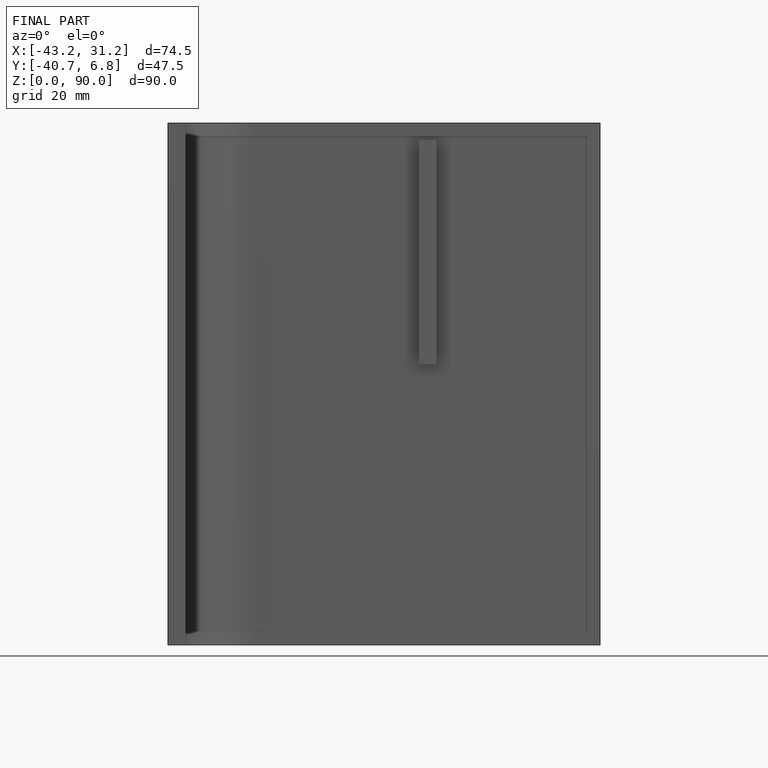
[diagram: finished part — front view with bounding-box wireframe]
